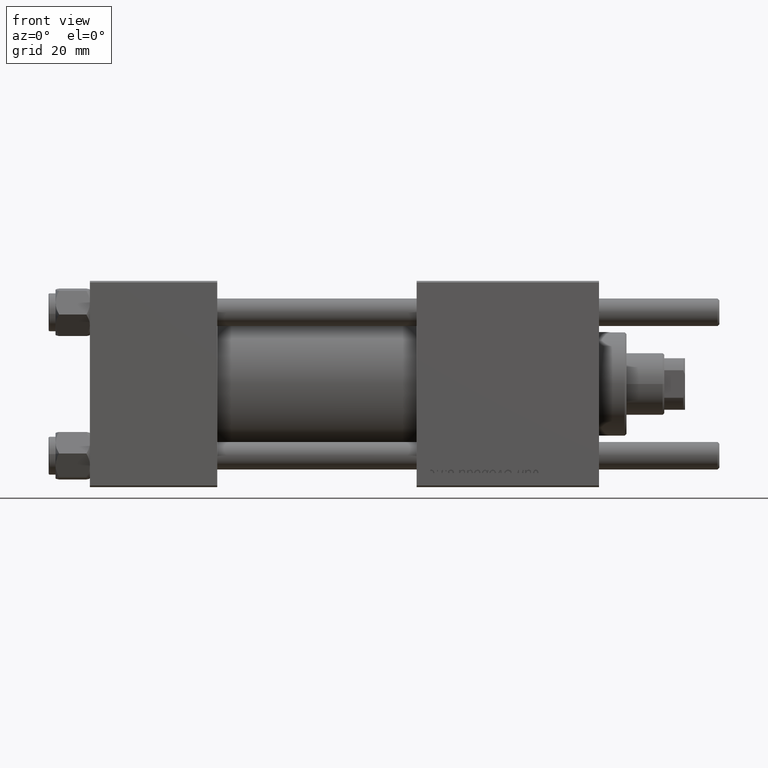
[diagram: clean part render]
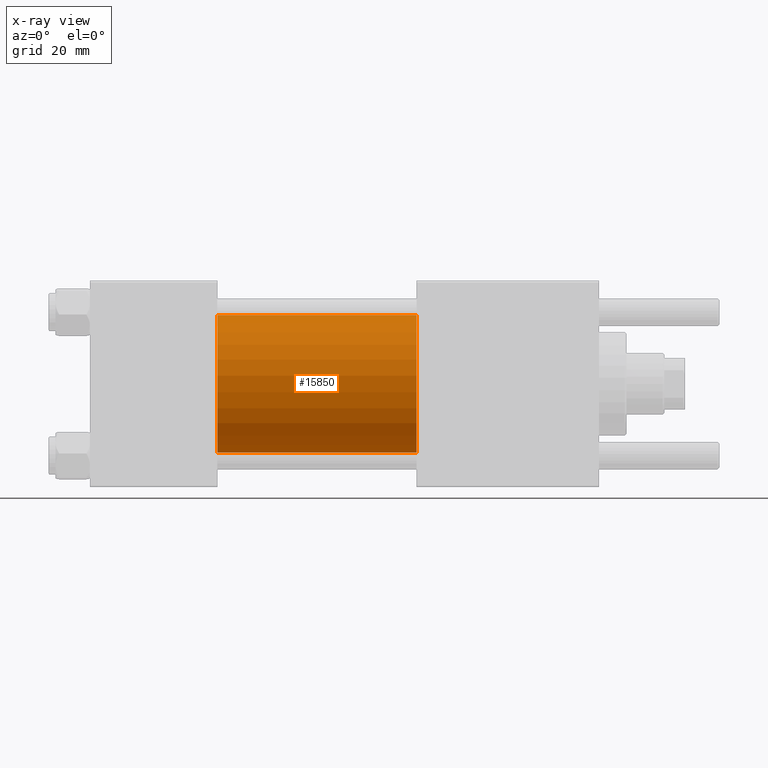
[diagram: x-ray — body ghosted, one internal face saturated and labeled with its STEP entity id]
A machine part, front view, then the same camera in x-ray: the body is ghosted and one INTERNAL B-rep face — a face not visible from any outside direction — is saturated and labeled: STEP entity #15850.
In plain terms, the highlighted cylindrical surface (partial cylindrical patch) has radius 20 mm, axis along (-1, -0, -0).
Its self-contained STEP definition (entity closure, byte-faithful):
#485 = CARTESIAN_POINT ( 'NONE',  ( 95.00000000000000000, -2.602085213965210642E-15, 0.000000000000000000 ) ) ;
#571 = CIRCLE ( 'NONE', #26276, 20.00000000000000000 ) ;
#1590 = VERTEX_POINT ( 'NONE', #5403 ) ;
#2846 = CARTESIAN_POINT ( 'NONE',  ( 37.00000000000000000, -2.602085213965210642E-15, 20.00000000000000000 ) ) ;
#3070 = DIRECTION ( 'NONE',  ( 1.000000000000000000, 0.000000000000000000, 0.000000000000000000 ) ) ;
#4530 = FACE_OUTER_BOUND ( 'NONE', #34777, .T. ) ;
#5403 = CARTESIAN_POINT ( 'NONE',  ( 95.00000000000000000, -1.527916156705046464E-16, -20.00000000000000000 ) ) ;
#5968 = AXIS2_PLACEMENT_3D ( 'NONE', #42148, #3070, #51359 ) ;
#9357 = DIRECTION ( 'NONE',  ( 1.000000000000000000, 0.000000000000000000, 0.000000000000000000 ) ) ;
#9721 = DIRECTION ( 'NONE',  ( -1.000000000000000000, -0.000000000000000000, -0.000000000000000000 ) ) ;
#9768 = EDGE_CURVE ( 'NONE', #1590, #16279, #52708, .T. ) ;
#12627 = EDGE_CURVE ( 'NONE', #55421, #17518, #19194, .T. ) ;
#15850 = ADVANCED_FACE ( 'NONE', ( #4530 ), #22031, .F. ) ;
#16279 = VERTEX_POINT ( 'NONE', #50048 ) ;
#17518 = VERTEX_POINT ( 'NONE', #2846 ) ;
#17710 = DIRECTION ( 'NONE',  ( -1.000000000000000000, -0.000000000000000000, -0.000000000000000000 ) ) ;
#19194 = LINE ( 'NONE', #54540, #36828 ) ;
#20661 = ORIENTED_EDGE ( 'NONE', *, *, #22851, .F. ) ;
#22031 = CYLINDRICAL_SURFACE ( 'NONE', #24103, 20.00000000000000000 ) ;
#22274 = CARTESIAN_POINT ( 'NONE',  ( 95.00000000000000000, -2.602085213965210642E-15, 0.000000000000000000 ) ) ;
#22851 = EDGE_CURVE ( 'NONE', #17518, #16279, #52726, .T. ) ;
#24103 = AXIS2_PLACEMENT_3D ( 'NONE', #485, #17710, #39829 ) ;
#25590 = ORIENTED_EDGE ( 'NONE', *, *, #9768, .T. ) ;
#26276 = AXIS2_PLACEMENT_3D ( 'NONE', #22274, #9357, #44138 ) ;
#26841 = ORIENTED_EDGE ( 'NONE', *, *, #12627, .F. ) ;
#31874 = EDGE_CURVE ( 'NONE', #55421, #1590, #571, .T. ) ;
#34586 = DIRECTION ( 'NONE',  ( -1.000000000000000000, -0.000000000000000000, -0.000000000000000000 ) ) ;
#34777 = EDGE_LOOP ( 'NONE', ( #46919, #25590, #20661, #26841 ) ) ;
#36828 = VECTOR ( 'NONE', #9721, 1000.000000000000000 ) ;
#38289 = CARTESIAN_POINT ( 'NONE',  ( 95.00000000000000000, -2.602085213965210642E-15, 20.00000000000000000 ) ) ;
#39829 = DIRECTION ( 'NONE',  ( 0.000000000000000000, 0.000000000000000000, 1.000000000000000000 ) ) ;
#42148 = CARTESIAN_POINT ( 'NONE',  ( 37.00000000000000000, -2.602085213965210642E-15, 0.000000000000000000 ) ) ;
#44138 = DIRECTION ( 'NONE',  ( 0.000000000000000000, 0.000000000000000000, -1.000000000000000000 ) ) ;
#46919 = ORIENTED_EDGE ( 'NONE', *, *, #31874, .T. ) ;
#50048 = CARTESIAN_POINT ( 'NONE',  ( 37.00000000000000000, -1.527916156705046464E-16, -20.00000000000000000 ) ) ;
#50254 = VECTOR ( 'NONE', #34586, 1000.000000000000000 ) ;
#51359 = DIRECTION ( 'NONE',  ( 0.000000000000000000, 0.000000000000000000, -1.000000000000000000 ) ) ;
#52708 = LINE ( 'NONE', #56737, #50254 ) ;
#52726 = CIRCLE ( 'NONE', #5968, 20.00000000000000000 ) ;
#54540 = CARTESIAN_POINT ( 'NONE',  ( 95.00000000000000000, -2.602085213965210642E-15, 20.00000000000000000 ) ) ;
#55421 = VERTEX_POINT ( 'NONE', #38289 ) ;
#56737 = CARTESIAN_POINT ( 'NONE',  ( 95.00000000000000000, -1.527916156705046464E-16, -20.00000000000000000 ) ) ;